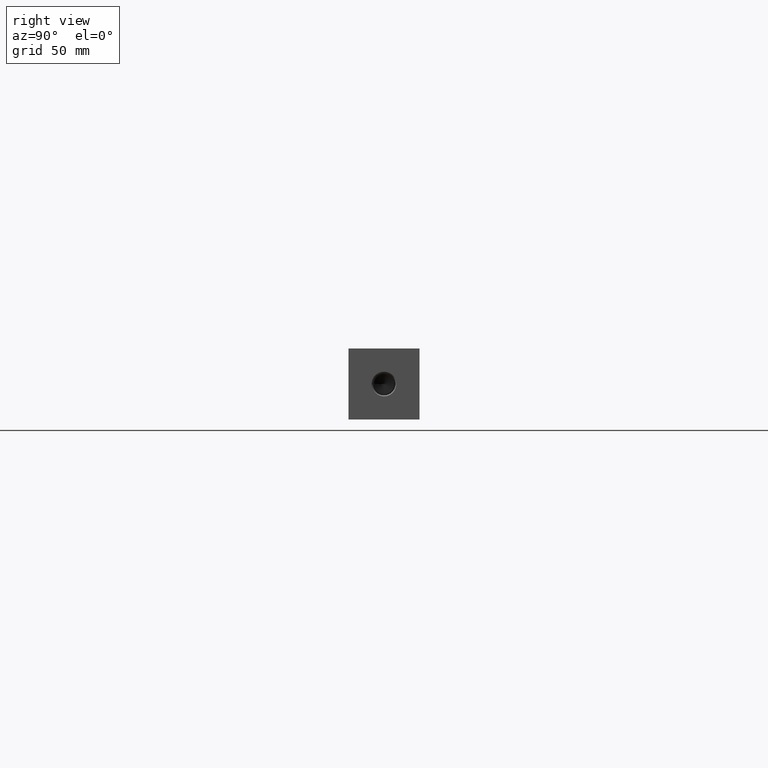
[diagram: clean part render]
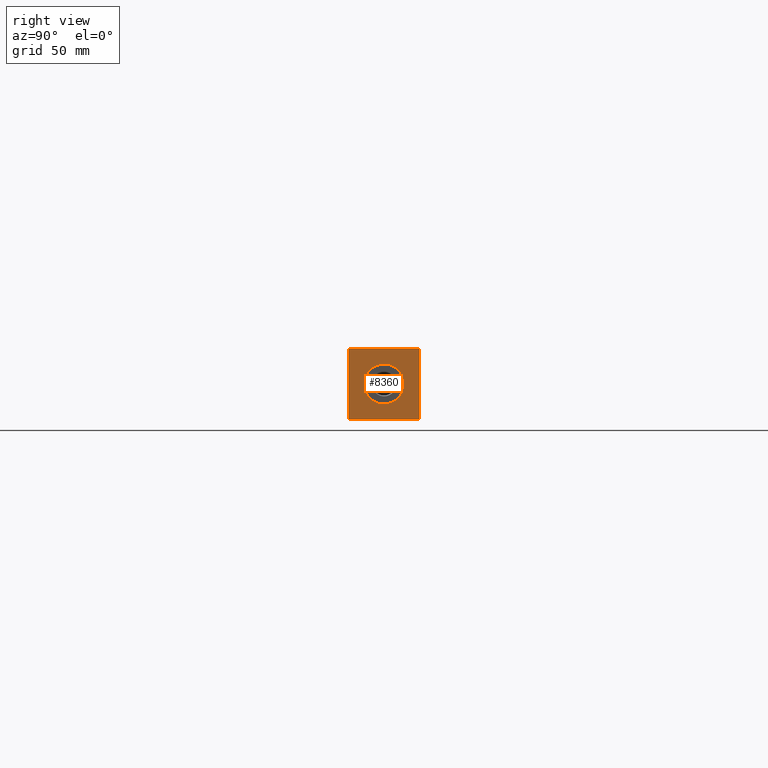
[diagram: same view with one face highlighted and labeled with its STEP entity id]
A machine part, right view. The second image highlights one B-rep face of the part: STEP entity #8360.
In plain terms, the highlighted planar face has unit normal (1, 0, 0).
Its self-contained STEP definition (entity closure, byte-faithful):
#334=CIRCLE('',#8916,12.5095);
#335=CIRCLE('',#8917,12.5095);
#433=FACE_BOUND('',#1629,.T.);
#1125=FACE_OUTER_BOUND('',#1628,.T.);
#1628=EDGE_LOOP('',(#7379,#7380,#7381,#7382));
#1629=EDGE_LOOP('',(#7383,#7384));
#1891=LINE('',#12724,#2641);
#2385=LINE('',#14374,#3135);
#2386=LINE('',#14377,#3136);
#2387=LINE('',#14378,#3137);
#2641=VECTOR('',#9359,10.);
#3135=VECTOR('',#10885,10.);
#3136=VECTOR('',#10888,10.);
#3137=VECTOR('',#10889,10.);
#3410=VERTEX_POINT('',#12721);
#3411=VERTEX_POINT('',#12723);
#3890=VERTEX_POINT('',#14276);
#3891=VERTEX_POINT('',#14277);
#3923=VERTEX_POINT('',#14372);
#3924=VERTEX_POINT('',#14376);
#4331=EDGE_CURVE('',#3410,#3411,#1891,.T.);
#5034=EDGE_CURVE('',#3890,#3891,#334,.T.);
#5035=EDGE_CURVE('',#3891,#3890,#335,.T.);
#5081=EDGE_CURVE('',#3923,#3411,#2385,.T.);
#5082=EDGE_CURVE('',#3924,#3923,#2386,.T.);
#5083=EDGE_CURVE('',#3924,#3410,#2387,.T.);
#7379=ORIENTED_EDGE('',*,*,#5082,.T.);
#7380=ORIENTED_EDGE('',*,*,#5081,.T.);
#7381=ORIENTED_EDGE('',*,*,#4331,.F.);
#7382=ORIENTED_EDGE('',*,*,#5083,.F.);
#7383=ORIENTED_EDGE('',*,*,#5034,.T.);
#7384=ORIENTED_EDGE('',*,*,#5035,.T.);
#7640=PLANE('',#8963);
#8360=ADVANCED_FACE('',(#1125,#433),#7640,.T.);
#8916=AXIS2_PLACEMENT_3D('',#14278,#10774,#10775);
#8917=AXIS2_PLACEMENT_3D('',#14279,#10776,#10777);
#8963=AXIS2_PLACEMENT_3D('',#14375,#10886,#10887);
#9359=DIRECTION('',(0.,1.,0.));
#10774=DIRECTION('center_axis',(-1.,0.,0.));
#10775=DIRECTION('ref_axis',(0.,0.,-1.));
#10776=DIRECTION('center_axis',(-1.,0.,0.));
#10777=DIRECTION('ref_axis',(0.,0.,-1.));
#10885=DIRECTION('',(0.,0.,1.));
#10886=DIRECTION('center_axis',(1.,0.,0.));
#10887=DIRECTION('ref_axis',(0.,1.,0.));
#10888=DIRECTION('',(0.,1.,0.));
#10889=DIRECTION('',(0.,0.,1.));
#12721=CARTESIAN_POINT('',(454.025,0.,44.45));
#12723=CARTESIAN_POINT('',(454.025,44.45,44.45));
#12724=CARTESIAN_POINT('',(454.025,0.,44.45));
#14276=CARTESIAN_POINT('',(454.025,22.225,9.7155));
#14277=CARTESIAN_POINT('',(454.025,22.225,34.7345));
#14278=CARTESIAN_POINT('Origin',(454.025,22.225,22.225));
#14279=CARTESIAN_POINT('Origin',(454.025,22.225,22.225));
#14372=CARTESIAN_POINT('',(454.025,44.45,0.));
#14374=CARTESIAN_POINT('',(454.025,44.45,0.));
#14375=CARTESIAN_POINT('Origin',(454.025,0.,0.));
#14376=CARTESIAN_POINT('',(454.025,0.,0.));
#14377=CARTESIAN_POINT('',(454.025,0.,0.));
#14378=CARTESIAN_POINT('',(454.025,0.,0.));